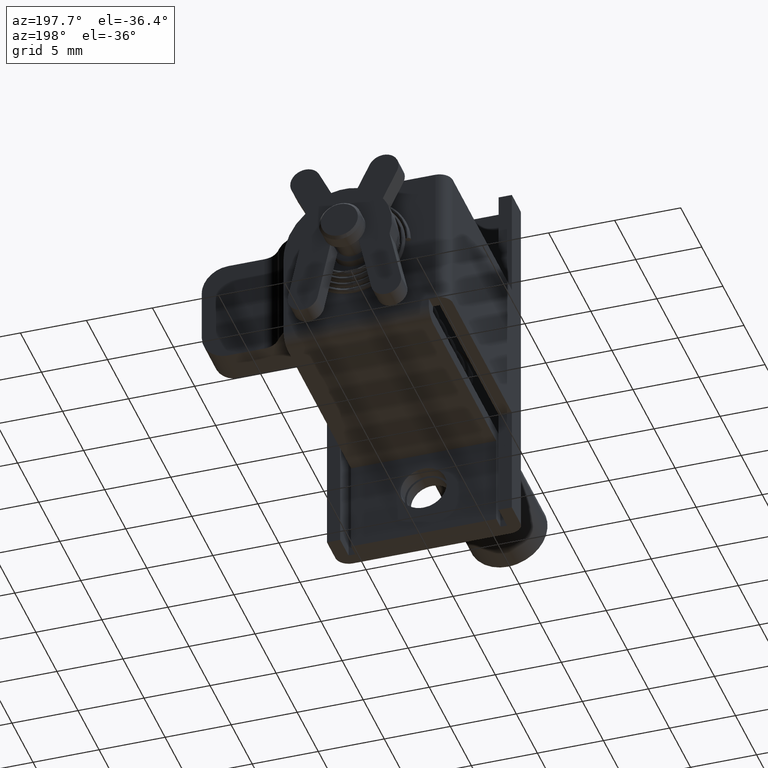
[diagram: clean part render]
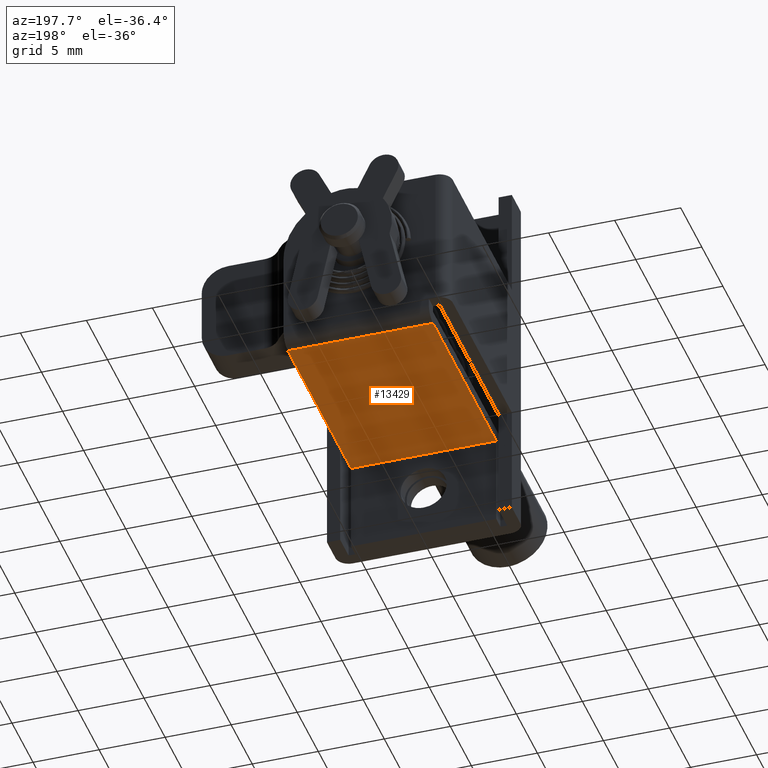
[diagram: same view with one face highlighted and labeled with its STEP entity id]
A machine part, auxiliary view. The second image highlights one B-rep face of the part: STEP entity #13429.
In plain terms, the highlighted face is a freeform B-spline surface patch.
Its self-contained STEP definition (entity closure, byte-faithful):
#12738=CARTESIAN_POINT('',(2.0,5.500000000000000,-7.0));
#12739=VERTEX_POINT('',#12738);
#12745=CARTESIAN_POINT('',(2.0,-5.500000000000000,-7.0));
#12746=VERTEX_POINT('',#12745);
#12747=CARTESIAN_POINT('',(2.0,-5.500000000000000,-7.0));
#12748=CARTESIAN_POINT('',(2.0,5.500000000000000,-7.0));
#12749=QUASI_UNIFORM_CURVE('',1,(#12747,#12748),.UNSPECIFIED.,.F.,.U.);
#12750=EDGE_CURVE('',#12746,#12739,#12749,.T.);
#12805=CARTESIAN_POINT('',(17.0,5.500000000000000,-7.0));
#12806=VERTEX_POINT('',#12805);
#12820=CARTESIAN_POINT('',(2.0,5.500000000000000,-7.0));
#12821=CARTESIAN_POINT('',(17.0,5.500000000000000,-7.0));
#12822=QUASI_UNIFORM_CURVE('',1,(#12820,#12821),.UNSPECIFIED.,.F.,.U.);
#12823=EDGE_CURVE('',#12739,#12806,#12822,.T.);
#12873=CARTESIAN_POINT('',(17.0,-5.500000000000000,-7.0));
#12874=VERTEX_POINT('',#12873);
#12888=CARTESIAN_POINT('',(17.0,-5.500000000000000,-7.0));
#12889=CARTESIAN_POINT('',(17.0,5.500000000000000,-7.0));
#12890=QUASI_UNIFORM_CURVE('',1,(#12888,#12889),.UNSPECIFIED.,.F.,.U.);
#12891=EDGE_CURVE('',#12874,#12806,#12890,.T.);
#13414=CARTESIAN_POINT('',(1.250750029072912,-6.049449978679865,-7.0));
#13415=CARTESIAN_POINT('',(17.749250373258452,-6.049449978679865,-7.0));
#13416=CARTESIAN_POINT('',(1.250750029072912,6.049450273722857,-7.0));
#13417=CARTESIAN_POINT('',(17.749250373258452,6.049450273722857,-7.0));
#13418=B_SPLINE_SURFACE_WITH_KNOTS('',1,1,((#13414,#13416),(#13415,#13417)),.UNSPECIFIED.,.F.,.F.,.U.,(2,2),(2,2),(0.0,16.498500344185530),(0.0,12.098900252402720),.UNSPECIFIED.);
#13419=ORIENTED_EDGE('',*,*,#12750,.T.);
#13420=ORIENTED_EDGE('',*,*,#12823,.T.);
#13421=ORIENTED_EDGE('',*,*,#12891,.F.);
#13422=CARTESIAN_POINT('',(2.0,-5.500000000000000,-7.0));
#13423=CARTESIAN_POINT('',(17.0,-5.500000000000000,-7.0));
#13424=QUASI_UNIFORM_CURVE('',1,(#13422,#13423),.UNSPECIFIED.,.F.,.U.);
#13425=EDGE_CURVE('',#12746,#12874,#13424,.T.);
#13426=ORIENTED_EDGE('',*,*,#13425,.F.);
#13427=EDGE_LOOP('',(#13419,#13420,#13421,#13426));
#13428=FACE_OUTER_BOUND('',#13427,.T.);
#13429=ADVANCED_FACE('',(#13428),#13418,.F.);